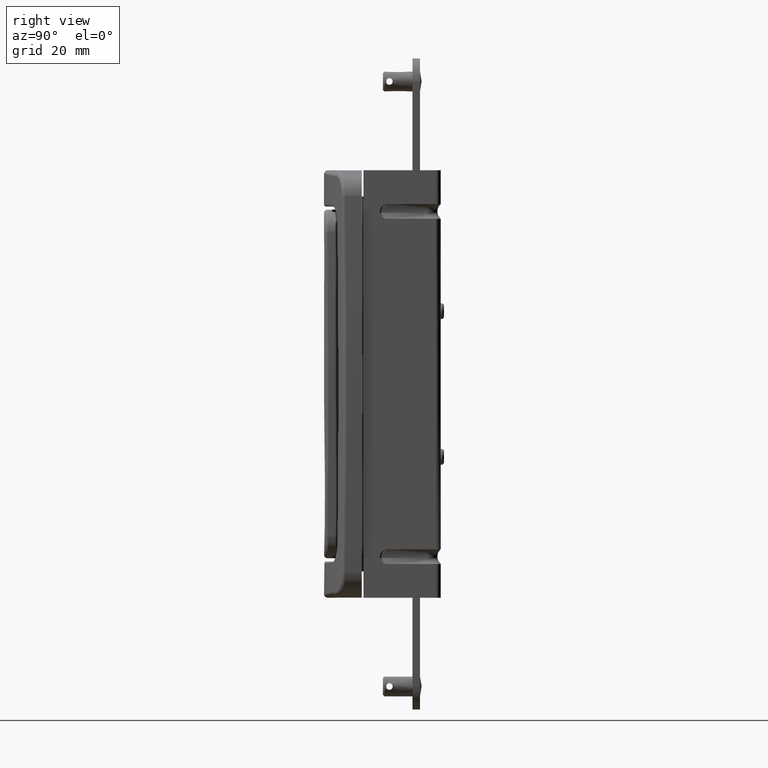
[diagram: clean part render]
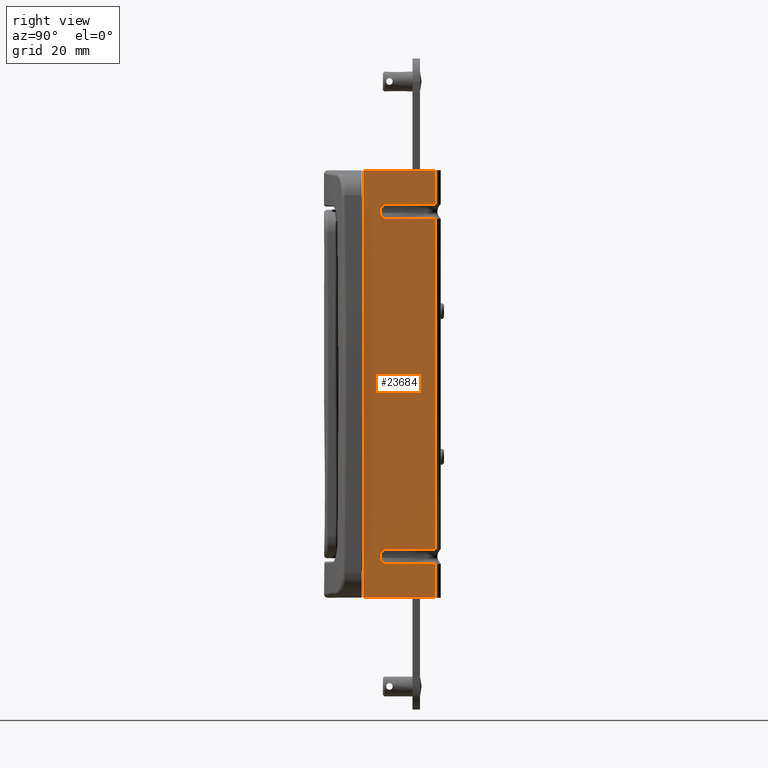
[diagram: same view with one face highlighted and labeled with its STEP entity id]
A machine part, right view. The second image highlights one B-rep face of the part: STEP entity #23684.
In plain terms, the highlighted face is a freeform B-spline surface patch.
Its self-contained STEP definition (entity closure, byte-faithful):
#15310=CARTESIAN_POINT('',(90.500007999999895,22.500000000000000,-65.0));
#15311=VERTEX_POINT('',#15310);
#15329=CARTESIAN_POINT('',(90.500007999999895,22.500000000000000,-54.739134001368008));
#15330=VERTEX_POINT('',#15329);
#15360=CARTESIAN_POINT('',(90.500007999999895,22.500000000000000,-65.0));
#15361=CARTESIAN_POINT('',(90.500007999999895,22.500000000000000,-54.739134001368008));
#15362=QUASI_UNIFORM_CURVE('',1,(#15360,#15361),.UNSPECIFIED.,.F.,.U.);
#15363=EDGE_CURVE('',#15311,#15330,#15362,.T.);
#15384=CARTESIAN_POINT('',(90.500007999999895,22.500000000000849,-50.260865998629200));
#15385=VERTEX_POINT('',#15384);
#15422=CARTESIAN_POINT('',(90.500007999999895,22.500000000000000,50.260865998632113));
#15423=VERTEX_POINT('',#15422);
#15453=CARTESIAN_POINT('',(90.500007999999895,22.500000000000849,-50.260865998629200));
#15454=CARTESIAN_POINT('',(90.500007999999895,22.500000000000000,50.260865998632113));
#15455=QUASI_UNIFORM_CURVE('',1,(#15453,#15454),.UNSPECIFIED.,.F.,.U.);
#15456=EDGE_CURVE('',#15385,#15423,#15455,.T.);
#15551=CARTESIAN_POINT('',(90.500007999999895,22.500000000000799,54.739134001370907));
#15552=VERTEX_POINT('',#15551);
#15589=CARTESIAN_POINT('',(90.500007999999895,22.500000000000000,65.0));
#15590=VERTEX_POINT('',#15589);
#15601=CARTESIAN_POINT('',(90.500007999999895,22.500000000000799,54.739134001370907));
#15602=CARTESIAN_POINT('',(90.500007999999895,22.500000000000000,65.0));
#15603=QUASI_UNIFORM_CURVE('',1,(#15601,#15602),.UNSPECIFIED.,.F.,.U.);
#15604=EDGE_CURVE('',#15552,#15590,#15603,.T.);
#20249=CARTESIAN_POINT('',(90.500007999999895,6.841988990998340,50.450457898386396));
#20250=VERTEX_POINT('',#20249);
#20251=CARTESIAN_POINT('',(90.500007999999895,7.736068000000000,50.263931999999997));
#20252=VERTEX_POINT('',#20251);
#20253=CARTESIAN_POINT('',(90.500007999999895,6.841988990998340,50.450457898386396));
#20254=CARTESIAN_POINT('',(90.500007999999923,7.122970172216701,50.327687726486282));
#20255=CARTESIAN_POINT('',(90.500007999999795,7.429421197265593,50.263677693901123));
#20256=CARTESIAN_POINT('',(90.500007999999895,7.736068000000000,50.263931999999997));
#20257=B_SPLINE_CURVE_WITH_KNOTS('',3,(#20253,#20254,#20255,#20256),.UNSPECIFIED.,.F.,.U.,(4,4),(0.000000025255006,0.919825081764398),.UNSPECIFIED.);
#20258=EDGE_CURVE('',#20250,#20252,#20257,.T.);
#20549=CARTESIAN_POINT('',(90.500007999999895,6.841988990998650,54.549542101613703));
#20550=VERTEX_POINT('',#20549);
#20629=CARTESIAN_POINT('',(90.500007999999895,7.736068000000000,54.736068000000003));
#20630=VERTEX_POINT('',#20629);
#20638=CARTESIAN_POINT('',(90.500007999999895,7.736068000000000,54.736068000000003));
#20639=CARTESIAN_POINT('',(90.500007999999895,7.429437269512408,54.736245615468597));
#20640=CARTESIAN_POINT('',(90.500008000000022,7.122954422572581,54.672386497174358));
#20641=CARTESIAN_POINT('',(90.500007999999895,6.841988990998650,54.549542101613703));
#20642=B_SPLINE_CURVE_WITH_KNOTS('',3,(#20638,#20639,#20640,#20641),.UNSPECIFIED.,.F.,.U.,(4,4),(0.000000025254827,0.919825081764069),.UNSPECIFIED.);
#20643=EDGE_CURVE('',#20630,#20550,#20642,.T.);
#20669=CARTESIAN_POINT('',(90.500007999999895,6.841988990998700,-54.549542101613703));
#20670=VERTEX_POINT('',#20669);
#20671=CARTESIAN_POINT('',(90.500007999999895,7.736068000000000,-54.736068000000003));
#20672=VERTEX_POINT('',#20671);
#20673=CARTESIAN_POINT('',(90.500007999999895,6.841988990998700,-54.549542101613703));
#20674=CARTESIAN_POINT('',(90.500007999999866,7.122952296714021,-54.672385156545467));
#20675=CARTESIAN_POINT('',(90.500008000000008,7.429438690900592,-54.736246142753309));
#20676=CARTESIAN_POINT('',(90.500007999999895,7.736068000000000,-54.736068000000003));
#20677=B_SPLINE_CURVE_WITH_KNOTS('',3,(#20673,#20674,#20675,#20676),.UNSPECIFIED.,.F.,.U.,(4,4),(0.000000025255069,0.919825081764019),.UNSPECIFIED.);
#20678=EDGE_CURVE('',#20670,#20672,#20677,.T.);
#20969=CARTESIAN_POINT('',(90.500007999999895,6.841988990998300,-50.450457898386396));
#20970=VERTEX_POINT('',#20969);
#21049=CARTESIAN_POINT('',(90.500007999999895,7.736068000000000,-50.263931999999997));
#21050=VERTEX_POINT('',#21049);
#21058=CARTESIAN_POINT('',(90.500007999999895,7.736068000000000,-50.263931999999997));
#21059=CARTESIAN_POINT('',(90.500007999999951,7.429438471652798,-50.263753874133229));
#21060=CARTESIAN_POINT('',(90.500007999999795,7.122952504710059,-50.327614827610880));
#21061=CARTESIAN_POINT('',(90.500007999999895,6.841988990998300,-50.450457898386396));
#21062=B_SPLINE_CURVE_WITH_KNOTS('',3,(#21058,#21059,#21060,#21061),.UNSPECIFIED.,.F.,.U.,(4,4),(0.000000025255105,0.919825081764433),.UNSPECIFIED.);
#21063=EDGE_CURVE('',#21050,#20970,#21062,.T.);
#21157=CARTESIAN_POINT('',(90.500007999999895,22.314257605906501,50.263931999999997));
#21158=VERTEX_POINT('',#21157);
#21159=CARTESIAN_POINT('',(90.500007999999895,22.500000000000000,50.260865998632113));
#21160=CARTESIAN_POINT('',(90.500007999999895,22.314257605906501,50.263931999999997));
#21161=QUASI_UNIFORM_CURVE('',1,(#21159,#21160),.UNSPECIFIED.,.F.,.U.);
#21162=EDGE_CURVE('',#15423,#21158,#21161,.T.);
#21392=CARTESIAN_POINT('',(90.500007999999895,22.314257605902899,54.736068000000103));
#21393=VERTEX_POINT('',#21392);
#21394=CARTESIAN_POINT('',(90.500007999999895,22.314257605902899,54.736068000000103));
#21395=CARTESIAN_POINT('',(90.500007999999895,22.500000000000799,54.739134001370907));
#21396=QUASI_UNIFORM_CURVE('',1,(#21394,#21395),.UNSPECIFIED.,.F.,.U.);
#21397=EDGE_CURVE('',#21393,#15552,#21396,.T.);
#21539=CARTESIAN_POINT('',(90.500007999999895,22.314257605906601,-54.736068000000103));
#21540=VERTEX_POINT('',#21539);
#21541=CARTESIAN_POINT('',(90.500007999999895,22.500000000000000,-54.739134001368008));
#21542=CARTESIAN_POINT('',(90.500007999999895,22.314257605906601,-54.736068000000103));
#21543=QUASI_UNIFORM_CURVE('',1,(#21541,#21542),.UNSPECIFIED.,.F.,.U.);
#21544=EDGE_CURVE('',#15330,#21540,#21543,.T.);
#21774=CARTESIAN_POINT('',(90.500007999999895,22.314257605902799,-50.263931999999997));
#21775=VERTEX_POINT('',#21774);
#21776=CARTESIAN_POINT('',(90.500007999999895,22.314257605902799,-50.263931999999997));
#21777=CARTESIAN_POINT('',(90.500007999999895,22.500000000000849,-50.260865998629200));
#21778=QUASI_UNIFORM_CURVE('',1,(#21776,#21777),.UNSPECIFIED.,.F.,.U.);
#21779=EDGE_CURVE('',#21775,#15385,#21778,.T.);
#22229=CARTESIAN_POINT('',(90.500007999999895,7.736068000000000,-50.263931999999997));
#22230=CARTESIAN_POINT('',(90.500007999999895,22.314257605902799,-50.263931999999997));
#22231=QUASI_UNIFORM_CURVE('',1,(#22229,#22230),.UNSPECIFIED.,.F.,.U.);
#22232=EDGE_CURVE('',#21050,#21775,#22231,.T.);
#22266=CARTESIAN_POINT('',(90.500007999999895,22.314257605906601,-54.736068000000103));
#22267=CARTESIAN_POINT('',(90.500007999999895,7.736068000000000,-54.736068000000003));
#22268=QUASI_UNIFORM_CURVE('',1,(#22266,#22267),.UNSPECIFIED.,.F.,.U.);
#22269=EDGE_CURVE('',#21540,#20672,#22268,.T.);
#22289=CARTESIAN_POINT('',(90.500007999999895,7.736068000000000,54.736068000000003));
#22290=CARTESIAN_POINT('',(90.500007999999895,22.314257605902899,54.736068000000103));
#22291=QUASI_UNIFORM_CURVE('',1,(#22289,#22290),.UNSPECIFIED.,.F.,.U.);
#22292=EDGE_CURVE('',#20630,#21393,#22291,.T.);
#22326=CARTESIAN_POINT('',(90.500007999999895,22.314257605906501,50.263931999999997));
#22327=CARTESIAN_POINT('',(90.500007999999895,7.736068000000000,50.263931999999997));
#22328=QUASI_UNIFORM_CURVE('',1,(#22326,#22327),.UNSPECIFIED.,.F.,.U.);
#22329=EDGE_CURVE('',#21158,#20252,#22328,.T.);
#22425=CARTESIAN_POINT('',(90.500007999999895,6.841988990998300,-50.450457898386396));
#22426=CARTESIAN_POINT('',(90.500008000000165,6.544656950658705,-50.579619044481397));
#22427=CARTESIAN_POINT('',(90.500007999999511,6.120396129136199,-50.889206541108280));
#22428=CARTESIAN_POINT('',(90.500008000000093,5.706665717816926,-51.496842540265597));
#22429=CARTESIAN_POINT('',(90.500007999999838,5.496758822001938,-52.117282039009631));
#22430=CARTESIAN_POINT('',(90.500007999999823,5.484396046947783,-52.801335152804427));
#22431=CARTESIAN_POINT('',(90.500008000000122,5.694932805912792,-53.507540198796562));
#22432=CARTESIAN_POINT('',(90.500007999999738,6.139038620790120,-54.134915200080641));
#22433=CARTESIAN_POINT('',(90.500008000000008,6.594377851013146,-54.441727612486687));
#22434=CARTESIAN_POINT('',(90.500007999999895,6.841988990998700,-54.549542101613703));
#22435=B_SPLINE_CURVE_WITH_KNOTS('',3,(#22425,#22426,#22427,#22428,#22429,#22430,#22431,#22432,#22433,#22434),.UNSPECIFIED.,.F.,.U.,(4,1,1,1,1,1,1,4),(0.000000265493528,0.972266149274978,1.539468798794274,2.187666522997164,2.916806505226705,3.565001327415830,4.375313235125844,5.185498780523323),.UNSPECIFIED.);
#22436=EDGE_CURVE('',#20970,#20670,#22435,.T.);
#22523=CARTESIAN_POINT('',(90.500007999999895,6.841988990998650,54.549542101613703));
#22524=CARTESIAN_POINT('',(90.500007999999951,6.544732903360254,54.420331262079067));
#22525=CARTESIAN_POINT('',(90.500007999999795,6.075544630874857,54.078298934188680));
#22526=CARTESIAN_POINT('',(90.500008000000122,5.682181671876457,53.452774796704830));
#22527=CARTESIAN_POINT('',(90.500007999999625,5.511429361805365,52.880017483934481));
#22528=CARTESIAN_POINT('',(90.500008000000477,5.480295630929634,52.309170351602738));
#22529=CARTESIAN_POINT('',(90.500007999998573,5.598047955470010,51.776235633266289));
#22530=CARTESIAN_POINT('',(90.500008000001614,5.835418839789027,51.288545654447553));
#22531=CARTESIAN_POINT('',(90.500007999998147,6.207435034952633,50.819134752190507));
#22532=CARTESIAN_POINT('',(90.500008000000506,6.594362554705943,50.558255849310683));
#22533=CARTESIAN_POINT('',(90.500007999999895,6.841988990998340,50.450457898386396));
#22534=B_SPLINE_CURVE_WITH_KNOTS('',3,(#22523,#22524,#22525,#22526,#22527,#22528,#22529,#22530,#22531,#22532,#22533),.UNSPECIFIED.,.F.,.U.,(4,1,1,1,1,1,1,1,4),(0.000000265494736,0.972266149275991,1.701532974673539,2.187666522998099,2.754781097559059,3.402935026876975,3.808098618782047,4.375313235126017,5.185498780523305),.UNSPECIFIED.);
#22535=EDGE_CURVE('',#20550,#20250,#22534,.T.);
#23460=CARTESIAN_POINT('',(90.500007999999895,0.500000000000114,65.0));
#23461=VERTEX_POINT('',#23460);
#23462=CARTESIAN_POINT('',(90.500007999999895,22.500000000000000,65.0));
#23463=CARTESIAN_POINT('',(90.500007999999895,0.500000000000114,65.0));
#23464=QUASI_UNIFORM_CURVE('',1,(#23462,#23463),.UNSPECIFIED.,.F.,.U.);
#23465=EDGE_CURVE('',#15590,#23461,#23464,.T.);
#23528=CARTESIAN_POINT('',(90.500007999999895,0.500000000000114,-65.0));
#23529=VERTEX_POINT('',#23528);
#23530=CARTESIAN_POINT('',(90.500007999999895,22.500000000000000,-65.0));
#23531=CARTESIAN_POINT('',(90.500007999999895,0.500000000000114,-65.0));
#23532=QUASI_UNIFORM_CURVE('',1,(#23530,#23531),.UNSPECIFIED.,.F.,.U.);
#23533=EDGE_CURVE('',#15311,#23529,#23532,.T.);
#23631=CARTESIAN_POINT('',(90.500007999999895,0.500000000000114,-65.0));
#23632=CARTESIAN_POINT('',(90.500007999999895,0.500000000000114,65.0));
#23633=QUASI_UNIFORM_CURVE('',1,(#23631,#23632),.UNSPECIFIED.,.F.,.U.);
#23634=EDGE_CURVE('',#23529,#23461,#23633,.T.);
#23657=CARTESIAN_POINT('',(90.500007999999895,-0.598899957359655,-71.493499748034765));
#23658=CARTESIAN_POINT('',(90.500007999999895,-0.598899957359655,71.493503234906484));
#23659=CARTESIAN_POINT('',(90.500007999999895,23.598900547446600,-71.493499748034765));
#23660=CARTESIAN_POINT('',(90.500007999999895,23.598900547446600,71.493503234906484));
#23661=B_SPLINE_SURFACE_WITH_KNOTS('',1,1,((#23657,#23659),(#23658,#23660)),.UNSPECIFIED.,.F.,.F.,.U.,(2,2),(2,2),(0.0,142.987002982941310),(0.0,24.197800504806260),.UNSPECIFIED.);
#23662=ORIENTED_EDGE('',*,*,#21397,.T.);
#23663=ORIENTED_EDGE('',*,*,#15604,.T.);
#23664=ORIENTED_EDGE('',*,*,#23465,.T.);
#23665=ORIENTED_EDGE('',*,*,#23634,.F.);
#23666=ORIENTED_EDGE('',*,*,#23533,.F.);
#23667=ORIENTED_EDGE('',*,*,#15363,.T.);
#23668=ORIENTED_EDGE('',*,*,#21544,.T.);
#23669=ORIENTED_EDGE('',*,*,#22269,.T.);
#23670=ORIENTED_EDGE('',*,*,#20678,.F.);
#23671=ORIENTED_EDGE('',*,*,#22436,.F.);
#23672=ORIENTED_EDGE('',*,*,#21063,.F.);
#23673=ORIENTED_EDGE('',*,*,#22232,.T.);
#23674=ORIENTED_EDGE('',*,*,#21779,.T.);
#23675=ORIENTED_EDGE('',*,*,#15456,.T.);
#23676=ORIENTED_EDGE('',*,*,#21162,.T.);
#23677=ORIENTED_EDGE('',*,*,#22329,.T.);
#23678=ORIENTED_EDGE('',*,*,#20258,.F.);
#23679=ORIENTED_EDGE('',*,*,#22535,.F.);
#23680=ORIENTED_EDGE('',*,*,#20643,.F.);
#23681=ORIENTED_EDGE('',*,*,#22292,.T.);
#23682=EDGE_LOOP('',(#23662,#23663,#23664,#23665,#23666,#23667,#23668,#23669,#23670,#23671,#23672,#23673,#23674,#23675,#23676,#23677,#23678,#23679,#23680,#23681));
#23683=FACE_OUTER_BOUND('',#23682,.T.);
#23684=ADVANCED_FACE('',(#23683),#23661,.F.);